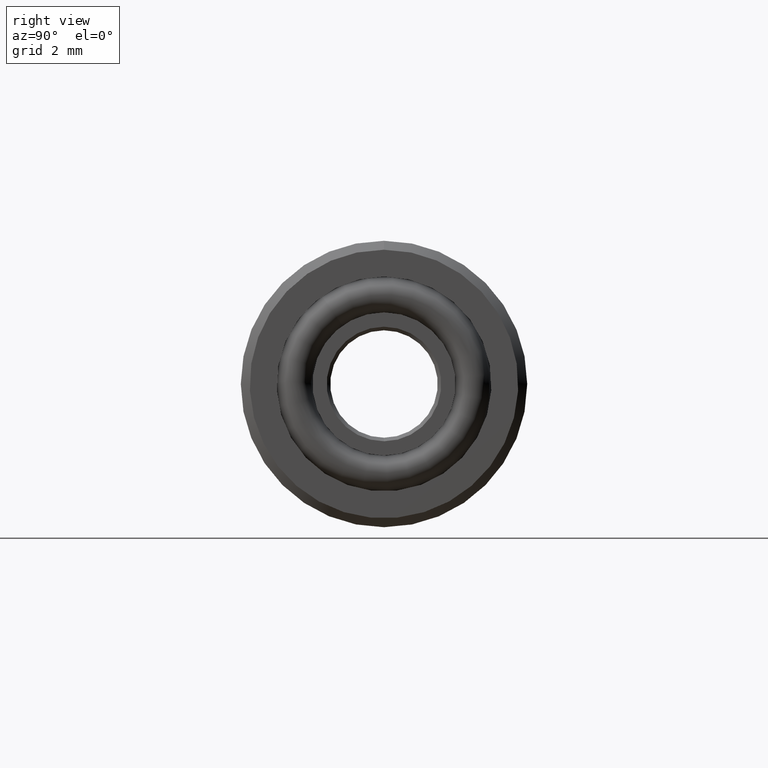
[diagram: clean part render]
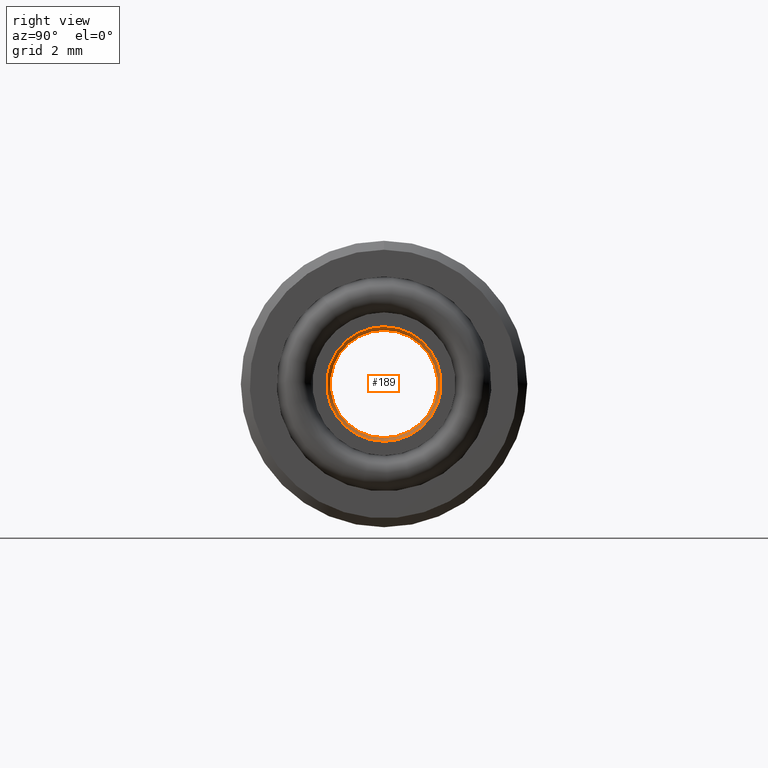
[diagram: same view with one face highlighted and labeled with its STEP entity id]
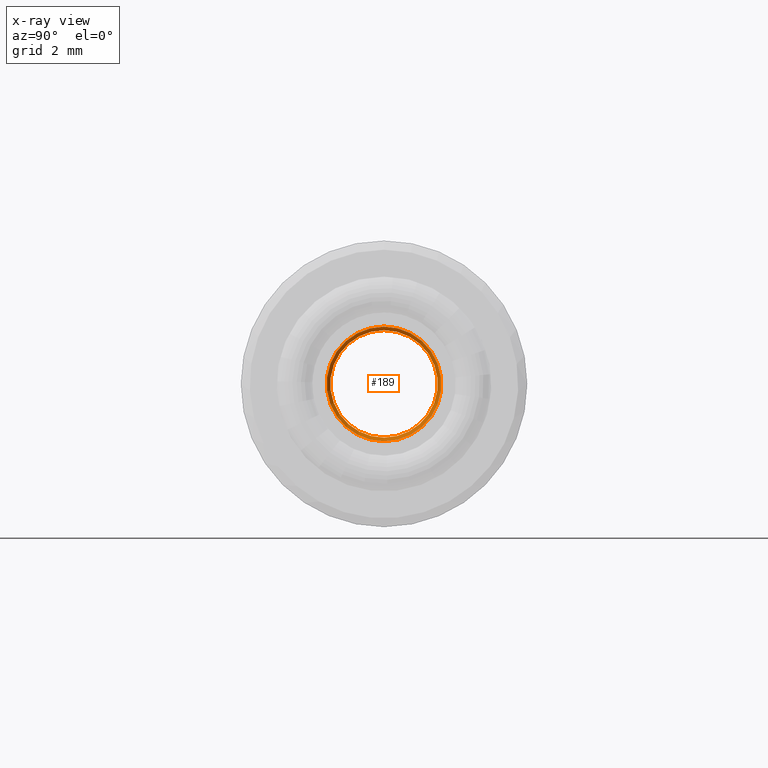
[diagram: x-ray of the same camera — body ghosted, the highlighted face saturated]
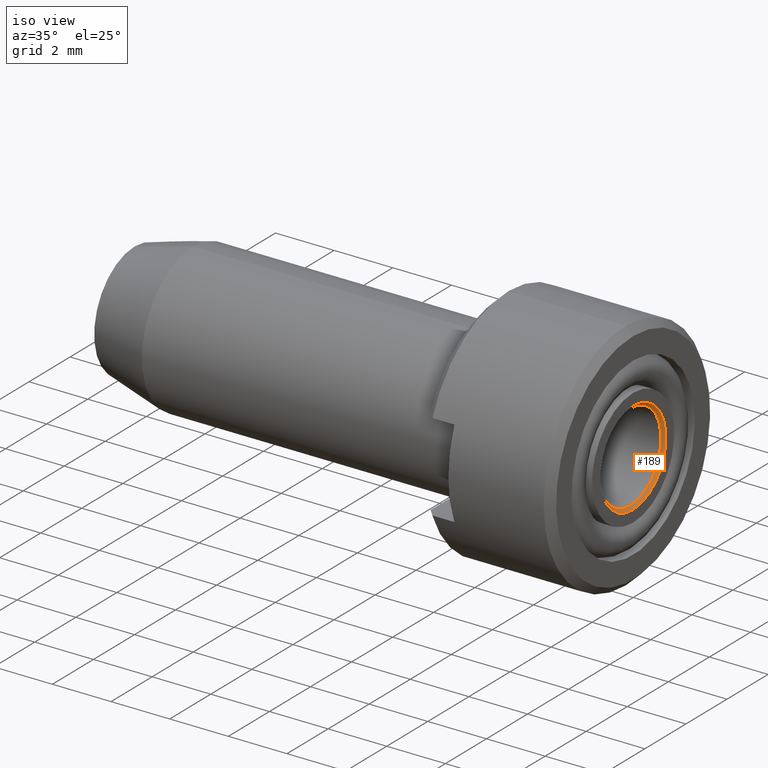
[diagram: same view with one face highlighted and labeled with its STEP entity id]
A machine part, right view. The second image highlights one B-rep face of the part: STEP entity #189.
The next image is the same camera in x-ray: the body ghosted, the highlighted face saturated — about 0% of this face is hidden behind the body in this view.
A second angle (iso view) of the same face is appended — the face is thin or edge-on in the first view.
In plain terms, the highlighted conical surface has half-angle 45 deg.
Its self-contained STEP definition (entity closure, byte-faithful):
#189 = ADVANCED_FACE( '', ( #343, #344 ), #345, .F. );
#343 = FACE_BOUND( '', #477, .T. );
#344 = FACE_OUTER_BOUND( '', #478, .T. );
#345 = CONICAL_SURFACE( '', #479, 1.60000000000000, 0.785398163397434 );
#477 = EDGE_LOOP( '', ( #693 ) );
#478 = EDGE_LOOP( '', ( #694 ) );
#479 = AXIS2_PLACEMENT_3D( '', #695, #696, #697 );
#693 = ORIENTED_EDGE( '', *, *, #797, .F. );
#694 = ORIENTED_EDGE( '', *, *, #793, .F. );
#695 = CARTESIAN_POINT( '', ( 0.000000000000000, 0.000000000000000, 0.000000000000000 ) );
#696 = DIRECTION( '', ( 1.00000000000000, -0.000000000000000, 0.000000000000000 ) );
#697 = DIRECTION( '', ( 0.000000000000000, 0.000000000000000, -1.00000000000000 ) );
#793 = EDGE_CURVE( '', #906, #906, #907, .F. );
#797 = EDGE_CURVE( '', #913, #913, #914, .T. );
#906 = VERTEX_POINT( '', #1053 );
#907 = CIRCLE( '', #1054, 1.60000000000000 );
#913 = VERTEX_POINT( '', #1060 );
#914 = CIRCLE( '', #1061, 1.50000000000000 );
#1053 = CARTESIAN_POINT( '', ( 0.000000000000000, 0.000000000000000, -1.60000000000000 ) );
#1054 = AXIS2_PLACEMENT_3D( '', #1170, #1171, #1172 );
#1060 = CARTESIAN_POINT( '', ( -0.100000000000003, 0.000000000000000, -1.50000000000000 ) );
#1061 = AXIS2_PLACEMENT_3D( '', #1179, #1180, #1181 );
#1170 = CARTESIAN_POINT( '', ( 0.000000000000000, 0.000000000000000, 0.000000000000000 ) );
#1171 = DIRECTION( '', ( 1.00000000000000, 0.000000000000000, 0.000000000000000 ) );
#1172 = DIRECTION( '', ( 0.000000000000000, 0.000000000000000, -1.00000000000000 ) );
#1179 = CARTESIAN_POINT( '', ( -0.100000000000003, 0.000000000000000, 0.000000000000000 ) );
#1180 = DIRECTION( '', ( 1.00000000000000, 0.000000000000000, 0.000000000000000 ) );
#1181 = DIRECTION( '', ( 0.000000000000000, 0.000000000000000, -1.00000000000000 ) );